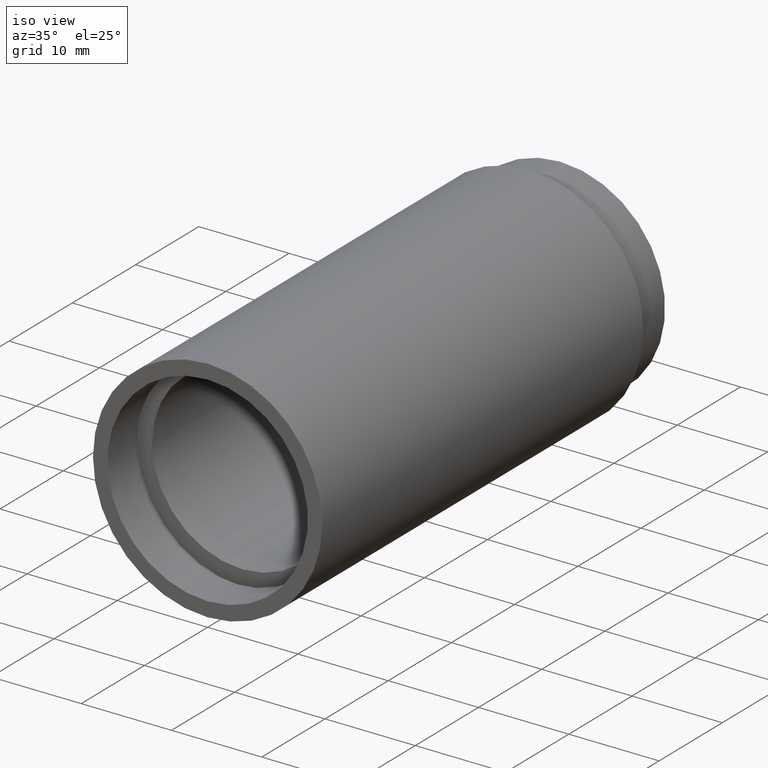
[diagram: clean part render]
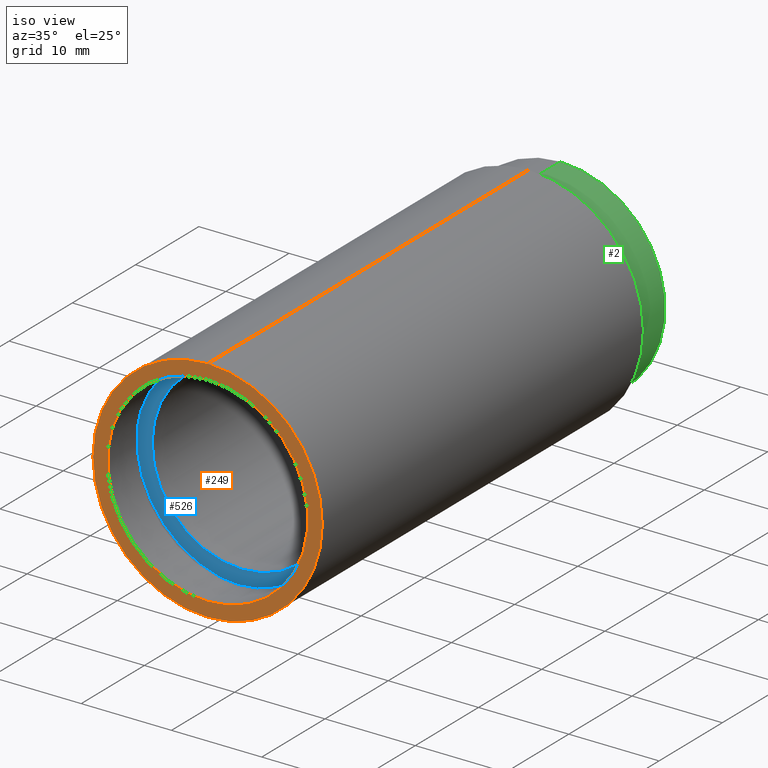
[diagram: same view with three faces highlighted in distinct colors, each labeled with its STEP entity id]
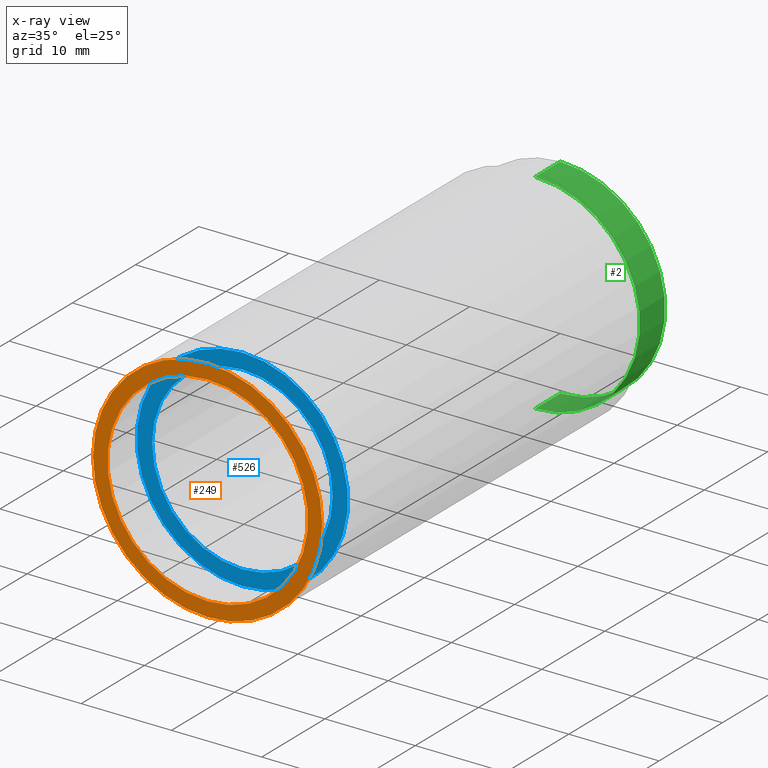
[diagram: x-ray of the same camera — body ghosted, the three highlighted faces saturated]
A machine part, iso view with three faces highlighted in distinct colors.
The next image is the same camera in x-ray (body ghosted, the three faces saturated) — at least one of them is partly hidden behind the body in this view.
Their STEP definitions:

[orange] entity #249 — the highlighted planar face has unit normal (-0, 1, 0).
#1 = AXIS2_PLACEMENT_3D ( 'NONE', #265, #24, #215 ) ;
#10 = EDGE_CURVE ( 'NONE', #387, #130, #144, .T. ) ;
#24 = DIRECTION ( 'NONE',  ( -0.0000000000000000000, 1.000000000000000000, -0.0000000000000000000 ) ) ;
#33 = DIRECTION ( 'NONE',  ( -0.0000000000000000000, 1.000000000000000000, -0.0000000000000000000 ) ) ;
#38 = DIRECTION ( 'NONE',  ( -0.0000000000000000000, 1.000000000000000000, -0.0000000000000000000 ) ) ;
#65 = ORIENTED_EDGE ( 'NONE', *, *, #505, .T. ) ;
#84 = CIRCLE ( 'NONE', #1, 11.10000000000001700 ) ;
#86 = DIRECTION ( 'NONE',  ( 0.0000000000000000000, 0.0000000000000000000, 1.000000000000000000 ) ) ;
#111 = ORIENTED_EDGE ( 'NONE', *, *, #10, .F. ) ;
#130 = VERTEX_POINT ( 'NONE', #460 ) ;
#133 = CIRCLE ( 'NONE', #494, 11.10000000000001700 ) ;
#136 = CARTESIAN_POINT ( 'NONE',  ( 0.0000000000000000000, -2.775557561562891400E-014, 0.0000000000000000000 ) ) ;
#144 = CIRCLE ( 'NONE', #481, 12.70000000000002100 ) ;
#149 = DIRECTION ( 'NONE',  ( -0.0000000000000000000, 1.000000000000000000, -0.0000000000000000000 ) ) ;
#155 = EDGE_CURVE ( 'NONE', #130, #387, #367, .T. ) ;
#215 = DIRECTION ( 'NONE',  ( 0.0000000000000000000, 0.0000000000000000000, 1.000000000000000000 ) ) ;
#249 = ADVANCED_FACE ( 'NONE', ( #312, #520 ), #465, .F. ) ;
#265 = CARTESIAN_POINT ( 'NONE',  ( 0.0000000000000000000, -2.775557561562891400E-014, 0.0000000000000000000 ) ) ;
#312 = FACE_OUTER_BOUND ( 'NONE', #326, .T. ) ;
#319 = CARTESIAN_POINT ( 'NONE',  ( 0.0000000000000000000, -2.775557561562891400E-014, 11.10000000000001700 ) ) ;
#325 = DIRECTION ( 'NONE',  ( 0.0000000000000000000, 0.0000000000000000000, 1.000000000000000000 ) ) ;
#326 = EDGE_LOOP ( 'NONE', ( #111, #479 ) ) ;
#330 = CARTESIAN_POINT ( 'NONE',  ( 0.0000000000000000000, -2.775557561562891400E-014, 0.0000000000000000000 ) ) ;
#331 = EDGE_LOOP ( 'NONE', ( #65, #617 ) ) ;
#338 = VERTEX_POINT ( 'NONE', #461 ) ;
#363 = CARTESIAN_POINT ( 'NONE',  ( 0.0000000000000000000, -2.775557561562891400E-014, 12.70000000000002100 ) ) ;
#367 = CIRCLE ( 'NONE', #614, 12.70000000000002100 ) ;
#376 = DIRECTION ( 'NONE',  ( -0.0000000000000000000, 1.000000000000000000, 0.0000000000000000000 ) ) ;
#387 = VERTEX_POINT ( 'NONE', #363 ) ;
#411 = EDGE_CURVE ( 'NONE', #338, #564, #133, .T. ) ;
#432 = CARTESIAN_POINT ( 'NONE',  ( 0.0000000000000000000, -2.775557561562891400E-014, 0.0000000000000000000 ) ) ;
#457 = DIRECTION ( 'NONE',  ( 0.0000000000000000000, 0.0000000000000000000, 1.000000000000000000 ) ) ;
#460 = CARTESIAN_POINT ( 'NONE',  ( 1.555301434917141000E-015, -2.775557561562891400E-014, -12.70000000000002100 ) ) ;
#461 = CARTESIAN_POINT ( 'NONE',  ( 1.359357947053564100E-015, -2.775557561562891400E-014, -11.10000000000001700 ) ) ;
#465 = PLANE ( 'NONE',  #530 ) ;
#479 = ORIENTED_EDGE ( 'NONE', *, *, #155, .F. ) ;
#481 = AXIS2_PLACEMENT_3D ( 'NONE', #432, #149, #457 ) ;
#494 = AXIS2_PLACEMENT_3D ( 'NONE', #136, #33, #325 ) ;
#505 = EDGE_CURVE ( 'NONE', #564, #338, #84, .T. ) ;
#518 = DIRECTION ( 'NONE',  ( 0.0000000000000000000, 0.0000000000000000000, 1.000000000000000000 ) ) ;
#520 = FACE_BOUND ( 'NONE', #331, .T. ) ;
#530 = AXIS2_PLACEMENT_3D ( 'NONE', #566, #376, #86 ) ;
#564 = VERTEX_POINT ( 'NONE', #319 ) ;
#566 = CARTESIAN_POINT ( 'NONE',  ( 11.10000000000001700, -1.580543700394483700E-014, 0.0000000000000000000 ) ) ;
#614 = AXIS2_PLACEMENT_3D ( 'NONE', #330, #38, #518 ) ;
#617 = ORIENTED_EDGE ( 'NONE', *, *, #411, .T. ) ;

[blue] entity #526 — the highlighted planar face has unit normal (-0, 1, 0).
#16 = DIRECTION ( 'NONE',  ( -0.0000000000000000000, 1.000000000000000000, -0.0000000000000000000 ) ) ;
#34 = CARTESIAN_POINT ( 'NONE',  ( 0.0000000000000000000, 5.499999999999976900, 0.0000000000000000000 ) ) ;
#54 = EDGE_CURVE ( 'NONE', #238, #351, #503, .T. ) ;
#61 = CARTESIAN_POINT ( 'NONE',  ( 11.70000000000001900, 5.499999999999982200, 0.0000000000000000000 ) ) ;
#63 = AXIS2_PLACEMENT_3D ( 'NONE', #61, #359, #118 ) ;
#68 = DIRECTION ( 'NONE',  ( 0.0000000000000000000, 0.0000000000000000000, 1.000000000000000000 ) ) ;
#72 = CARTESIAN_POINT ( 'NONE',  ( 0.0000000000000000000, 5.499999999999976900, 0.0000000000000000000 ) ) ;
#79 = CARTESIAN_POINT ( 'NONE',  ( 1.432836755002405700E-015, 5.499999999999976900, -11.70000000000001900 ) ) ;
#100 = AXIS2_PLACEMENT_3D ( 'NONE', #161, #301, #252 ) ;
#101 = VERTEX_POINT ( 'NONE', #322 ) ;
#118 = DIRECTION ( 'NONE',  ( 0.0000000000000000000, 0.0000000000000000000, 1.000000000000000000 ) ) ;
#131 = DIRECTION ( 'NONE',  ( 0.0000000000000000000, 0.0000000000000000000, 1.000000000000000000 ) ) ;
#134 = CIRCLE ( 'NONE', #306, 11.70000000000001900 ) ;
#161 = CARTESIAN_POINT ( 'NONE',  ( 0.0000000000000000000, 5.499999999999976900, 0.0000000000000000000 ) ) ;
#169 = EDGE_LOOP ( 'NONE', ( #310, #464 ) ) ;
#185 = ORIENTED_EDGE ( 'NONE', *, *, #348, .F. ) ;
#203 = CIRCLE ( 'NONE', #100, 10.00000000000002000 ) ;
#213 = AXIS2_PLACEMENT_3D ( 'NONE', #72, #412, #605 ) ;
#238 = VERTEX_POINT ( 'NONE', #239 ) ;
#239 = CARTESIAN_POINT ( 'NONE',  ( 1.224646799147355400E-015, 5.499999999999976900, -10.00000000000002000 ) ) ;
#252 = DIRECTION ( 'NONE',  ( 0.0000000000000000000, 0.0000000000000000000, 1.000000000000000000 ) ) ;
#294 = AXIS2_PLACEMENT_3D ( 'NONE', #34, #559, #131 ) ;
#301 = DIRECTION ( 'NONE',  ( -0.0000000000000000000, 1.000000000000000000, -0.0000000000000000000 ) ) ;
#306 = AXIS2_PLACEMENT_3D ( 'NONE', #595, #16, #68 ) ;
#310 = ORIENTED_EDGE ( 'NONE', *, *, #586, .T. ) ;
#314 = FACE_BOUND ( 'NONE', #169, .T. ) ;
#322 = CARTESIAN_POINT ( 'NONE',  ( 0.0000000000000000000, 5.499999999999976900, 11.70000000000001900 ) ) ;
#348 = EDGE_CURVE ( 'NONE', #101, #561, #508, .T. ) ;
#351 = VERTEX_POINT ( 'NONE', #499 ) ;
#359 = DIRECTION ( 'NONE',  ( -0.0000000000000000000, 1.000000000000000000, 0.0000000000000000000 ) ) ;
#399 = EDGE_LOOP ( 'NONE', ( #185, #533 ) ) ;
#412 = DIRECTION ( 'NONE',  ( -0.0000000000000000000, 1.000000000000000000, -0.0000000000000000000 ) ) ;
#464 = ORIENTED_EDGE ( 'NONE', *, *, #54, .T. ) ;
#467 = FACE_OUTER_BOUND ( 'NONE', #399, .T. ) ;
#499 = CARTESIAN_POINT ( 'NONE',  ( 0.0000000000000000000, 5.499999999999976900, 10.00000000000002000 ) ) ;
#503 = CIRCLE ( 'NONE', #294, 10.00000000000002000 ) ;
#508 = CIRCLE ( 'NONE', #213, 11.70000000000001900 ) ;
#526 = ADVANCED_FACE ( 'NONE', ( #467, #314 ), #598, .F. ) ;
#533 = ORIENTED_EDGE ( 'NONE', *, *, #536, .F. ) ;
#536 = EDGE_CURVE ( 'NONE', #561, #101, #134, .T. ) ;
#559 = DIRECTION ( 'NONE',  ( -0.0000000000000000000, 1.000000000000000000, -0.0000000000000000000 ) ) ;
#561 = VERTEX_POINT ( 'NONE', #79 ) ;
#586 = EDGE_CURVE ( 'NONE', #351, #238, #203, .T. ) ;
#595 = CARTESIAN_POINT ( 'NONE',  ( 0.0000000000000000000, 5.499999999999976900, 0.0000000000000000000 ) ) ;
#598 = PLANE ( 'NONE',  #63 ) ;
#605 = DIRECTION ( 'NONE',  ( 0.0000000000000000000, 0.0000000000000000000, 1.000000000000000000 ) ) ;

[green] entity #2 — the highlighted cylindrical surface (partial cylindrical patch) has radius 11.6 mm, axis along (-0, 1, -0).
#2 = ADVANCED_FACE ( 'NONE', ( #492 ), #305, .T. ) ;
#37 = CARTESIAN_POINT ( 'NONE',  ( 1.420590287010930900E-015, 55.79999999999999000, -11.60000000000001000 ) ) ;
#51 = VERTEX_POINT ( 'NONE', #121 ) ;
#53 = AXIS2_PLACEMENT_3D ( 'NONE', #609, #417, #462 ) ;
#75 = EDGE_CURVE ( 'NONE', #555, #264, #142, .T. ) ;
#76 = DIRECTION ( 'NONE',  ( -0.0000000000000000000, 1.000000000000000000, -0.0000000000000000000 ) ) ;
#83 = CARTESIAN_POINT ( 'NONE',  ( 1.420590287010930900E-015, 161.3761669434274500, -11.60000000000001000 ) ) ;
#85 = ORIENTED_EDGE ( 'NONE', *, *, #291, .T. ) ;
#91 = LINE ( 'NONE', #455, #454 ) ;
#97 = DIRECTION ( 'NONE',  ( 0.0000000000000000000, 0.0000000000000000000, 1.000000000000000000 ) ) ;
#121 = CARTESIAN_POINT ( 'NONE',  ( 0.0000000000000000000, 55.79999999999999000, 11.60000000000001000 ) ) ;
#139 = DIRECTION ( 'NONE',  ( -0.0000000000000000000, 1.000000000000000000, -0.0000000000000000000 ) ) ;
#142 = LINE ( 'NONE', #83, #407 ) ;
#153 = CIRCLE ( 'NONE', #599, 11.60000000000001000 ) ;
#166 = EDGE_LOOP ( 'NONE', ( #85, #452, #487, #476 ) ) ;
#190 = CARTESIAN_POINT ( 'NONE',  ( 0.0000000000000000000, 161.3761669434274500, 0.0000000000000000000 ) ) ;
#192 = AXIS2_PLACEMENT_3D ( 'NONE', #190, #247, #97 ) ;
#221 = DIRECTION ( 'NONE',  ( -0.0000000000000000000, 1.000000000000000000, -0.0000000000000000000 ) ) ;
#247 = DIRECTION ( 'NONE',  ( -0.0000000000000000000, 1.000000000000000000, -0.0000000000000000000 ) ) ;
#264 = VERTEX_POINT ( 'NONE', #37 ) ;
#291 = EDGE_CURVE ( 'NONE', #311, #555, #153, .T. ) ;
#305 = CYLINDRICAL_SURFACE ( 'NONE', #192, 11.60000000000001000 ) ;
#311 = VERTEX_POINT ( 'NONE', #558 ) ;
#369 = CARTESIAN_POINT ( 'NONE',  ( 1.420590287010930900E-015, 51.79999999999998300, -11.60000000000001000 ) ) ;
#407 = VECTOR ( 'NONE', #76, 1000.000000000000000 ) ;
#417 = DIRECTION ( 'NONE',  ( -0.0000000000000000000, 1.000000000000000000, -0.0000000000000000000 ) ) ;
#418 = EDGE_CURVE ( 'NONE', #311, #51, #91, .T. ) ;
#452 = ORIENTED_EDGE ( 'NONE', *, *, #75, .T. ) ;
#454 = VECTOR ( 'NONE', #221, 1000.000000000000000 ) ;
#455 = CARTESIAN_POINT ( 'NONE',  ( 0.0000000000000000000, 161.3761669434274500, 11.60000000000001000 ) ) ;
#462 = DIRECTION ( 'NONE',  ( 0.0000000000000000000, 0.0000000000000000000, 1.000000000000000000 ) ) ;
#476 = ORIENTED_EDGE ( 'NONE', *, *, #418, .F. ) ;
#487 = ORIENTED_EDGE ( 'NONE', *, *, #539, .F. ) ;
#492 = FACE_OUTER_BOUND ( 'NONE', #166, .T. ) ;
#510 = CIRCLE ( 'NONE', #53, 11.60000000000001000 ) ;
#515 = DIRECTION ( 'NONE',  ( 0.0000000000000000000, 0.0000000000000000000, 1.000000000000000000 ) ) ;
#516 = CARTESIAN_POINT ( 'NONE',  ( 0.0000000000000000000, 51.79999999999998300, 0.0000000000000000000 ) ) ;
#539 = EDGE_CURVE ( 'NONE', #51, #264, #510, .T. ) ;
#555 = VERTEX_POINT ( 'NONE', #369 ) ;
#558 = CARTESIAN_POINT ( 'NONE',  ( 0.0000000000000000000, 51.79999999999998300, 11.60000000000001000 ) ) ;
#599 = AXIS2_PLACEMENT_3D ( 'NONE', #516, #139, #515 ) ;
#609 = CARTESIAN_POINT ( 'NONE',  ( 0.0000000000000000000, 55.79999999999999000, 0.0000000000000000000 ) ) ;